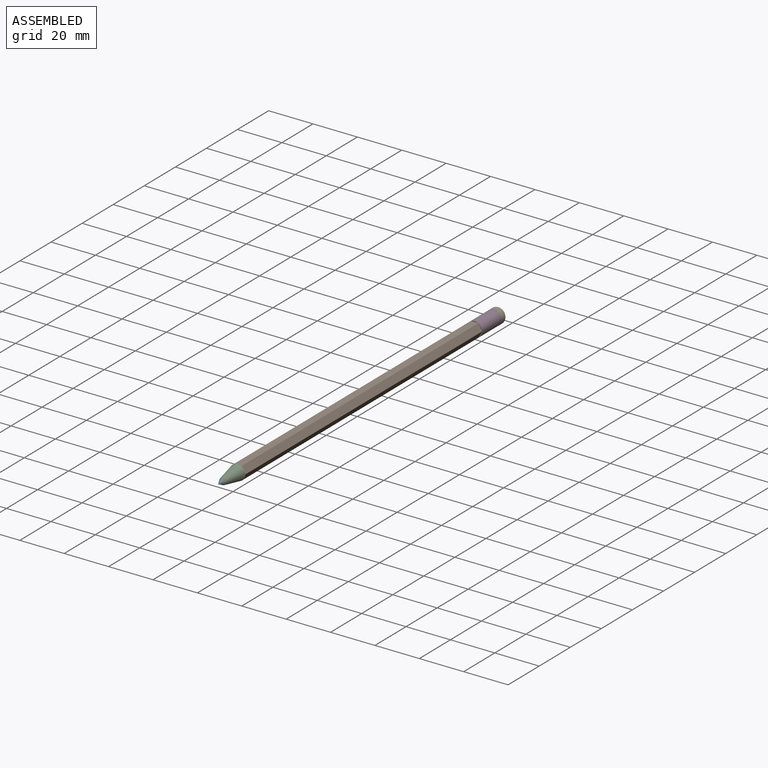
[diagram: assembled view]
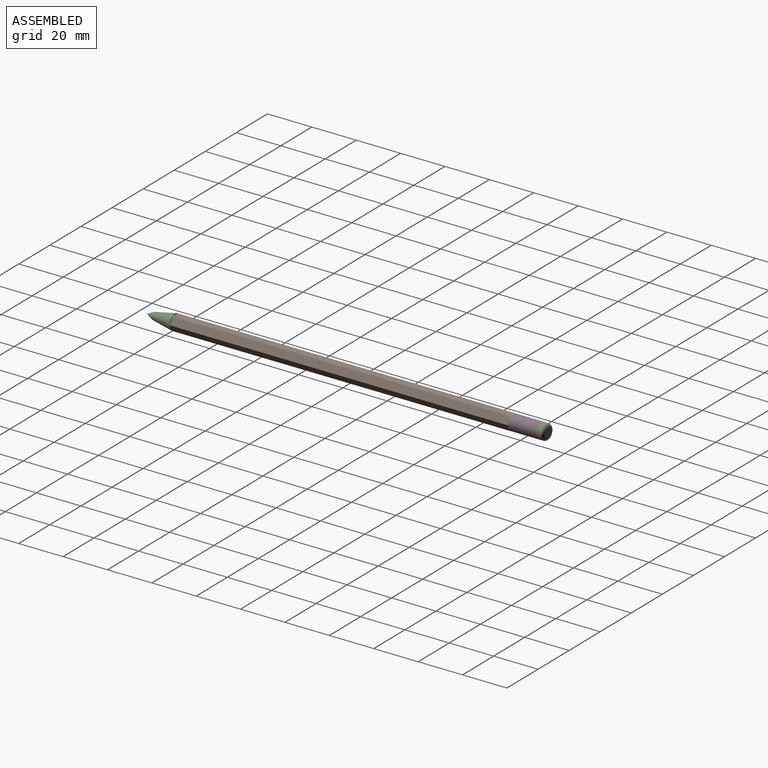
[diagram: assembled view, second angle]
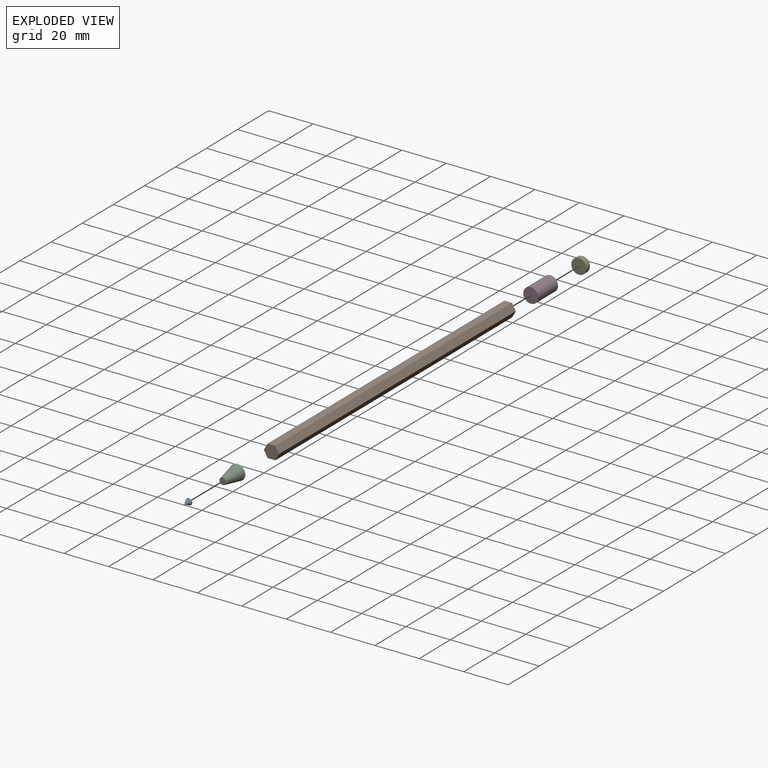
[diagram: exploded view]
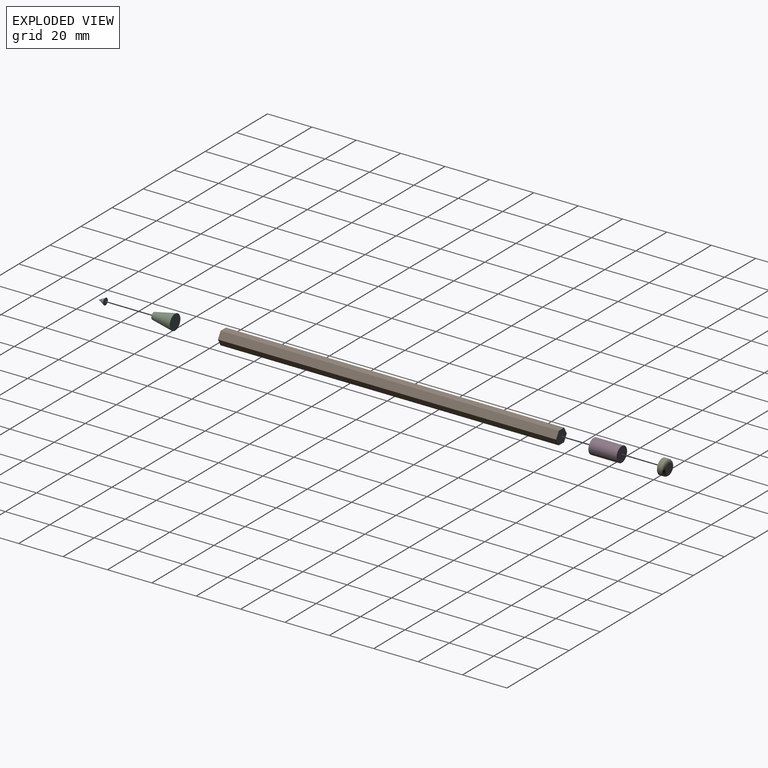
[diagram: exploded view, second angle]
ASSEMBLY  parts=5 mates=4
PART A: 2 faces, bbox 3x3x3 mm
  f0: plane 3.02x3.02mm, normal (1,0,0), area 7.2mm2, adj f1
  f1: cone r=1.51mm half-angle=26.4deg, axis (1,0,0), area 16.2mm2, adj f0
PART B: 8 faces, bbox 6.8x152.4x5.9 mm
  f0: plane 152.4x2.97mm, normal (0.87,0,-0.49), area 520.7mm2, adj f1,f5,f6,f7
  f1: plane 152.4x2.95mm, normal (0.86,0,0.51), area 520.7mm2, adj f0,f2,f6,f7
  f2: plane 152.4x3.42mm, normal (-0.01,0,1), area 520.7mm2, adj f1,f3,f6,f7
  f3: plane 152.4x2.97mm, normal (-0.87,0,0.49), area 520.7mm2, adj f2,f4,f6,f7
  f4: plane 152.4x2.95mm, normal (-0.86,0,-0.51), area 520.7mm2, adj f3,f5,f6,f7
  f5: plane 152.4x3.42mm, normal (0.01,0,-1), area 520.7mm2, adj f0,f4,f6,f7
  f6: plane 6.83x5.94mm, normal (0,-1,0), area 30.3mm2, adj f0,f1,f2,f3,f4,f5
  f7: plane 6.83x5.94mm, normal (0,1,0), area 30.3mm2, adj f0,f1,f2,f3,f4,f5
PART C: 3 faces, bbox 9.7x6.9x6.9 mm
  f0: plane 6.86x6.86mm, normal (-1,0,0), area 36.9mm2, adj f2
  f1: plane 3.05x3.05mm, normal (1,0,0), area 7.3mm2, adj f2
  f2: cone r=3.43mm half-angle=11.2deg, axis (-1,0,0), area 153.1mm2, adj f0,f1
PART D: 3 faces, bbox 6.8x12.7x6.8 mm
  f0: cylinder r=3.39mm len=12.7mm, axis (0,1,0), area 270.6mm2, adj f1,f2
  f1: plane 6.78x6.78mm, normal (0,-1,0), area 36.1mm2, adj f0
  f2: plane 6.78x6.78mm, normal (0,1,0), area 36.1mm2, adj f0
PART E: 4 faces, bbox 7.4x3.2x7.4 mm
  f0: cylinder r=3.4mm len=6.81mm, axis (0,1,0), area 40.7mm2, adj f2,f3
  f1: plane 4.27x4.27mm, normal (0,-1,0), area 14.3mm2, adj f3
  f2: plane 6.81x6.81mm, normal (0,1,0), area 36.4mm2, adj f0
  f3: torus R=2.13mm, axis (0,-1,0), area 36.9mm2, adj f0,f1
PLACE A rot(axis=(0.71,0.71,0),180deg) t=(-40.64,-128.7,-24.51)mm
PLACE B t=(-40.64,36.4,-24.51)mm
PLACE C rot(axis=(-0.58,0.58,-0.58),120deg) t=(-40.64,-116,-24.51)mm
PLACE D rot(axis=(1,0,0),180deg) t=(-40.64,36.4,-24.51)mm
PLACE E rot(axis=(1,0,0),180deg) t=(-40.64,49.1,-24.51)mm
MATE fastened D.f0 <-> B.f7  axis (0,-1,0) through (-40.64,36.4,-24.51)mm
MATE fastened E.f0 <-> D.f0  axis (0,-1,0) through (-40.64,49.1,-24.51)mm
MATE fastened A.f1 <-> C.f2  axis (0,1,0) through (-40.64,-125.66,-24.51)mm
MATE fastened C.f2 <-> B.f6  axis (0,1,0) through (-40.64,-116,-24.51)mm
